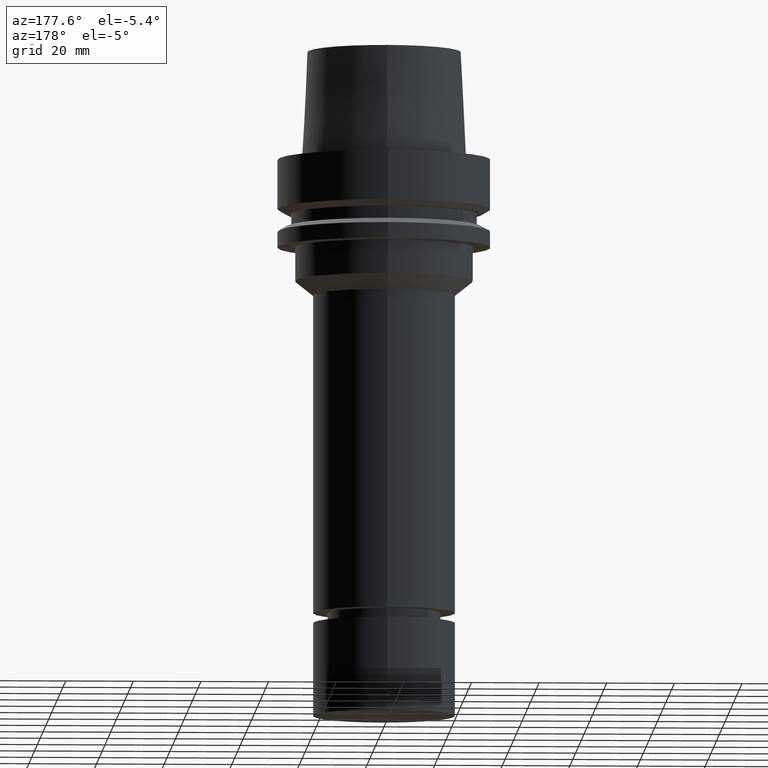
[diagram: clean part render]
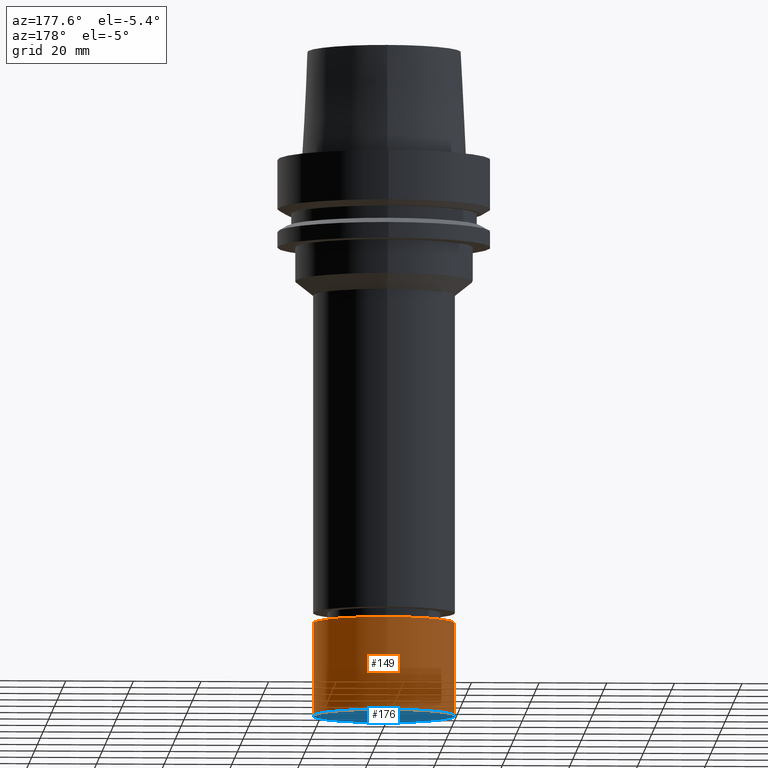
[diagram: same view with the hole feature highlighted: cylindrical wall and planar end face, labeled with their STEP entity ids]
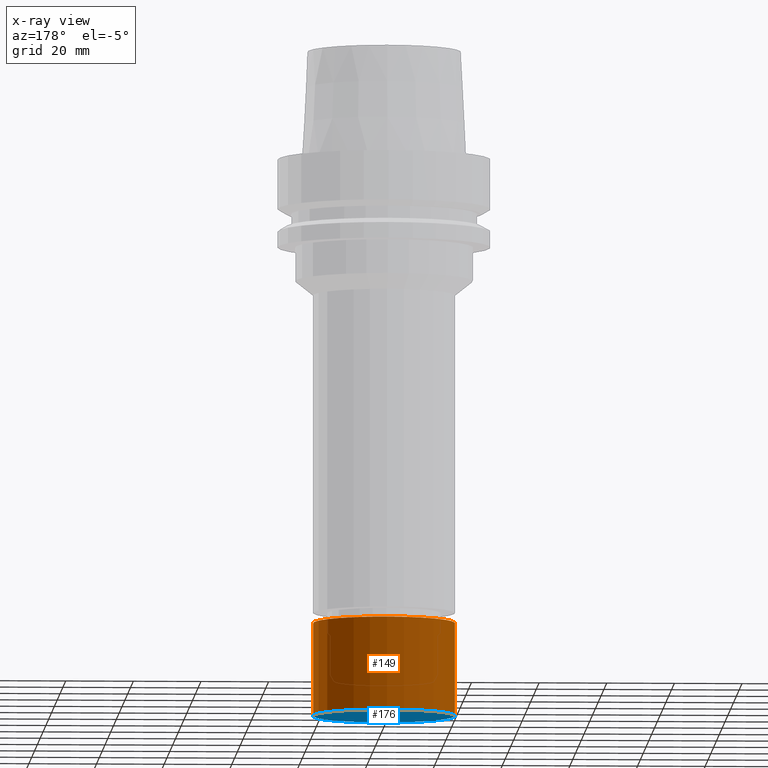
[diagram: x-ray of the same camera — body ghosted, the hole faces saturated]
A machine part, auxiliary view. The highlighted faces form one hole feature of diameter 42 mm: the cylindrical wall (entity #149, orange) and its adjacent planar end face (entity #176, blue) — they share a circular edge in the B-rep.
The next image is the same camera in x-ray (body ghosted, the hole faces saturated) — the bore reads through the body.
Wall:
#79=EDGE_CURVE('Unnamed[1]',#215,#215,#216,.T.);
#108=EDGE_CURVE('Unnamed[1]',#260,#260,#261,.T.);
#149=ADVANCED_FACE('Unnamed[1]',(#323,#324),#325,.T.);
#215=VERTEX_POINT('',#407);
#216=CIRCLE('',#408,21.0);
#260=VERTEX_POINT('',#463);
#261=CIRCLE('',#464,21.0);
#323=FACE_BOUND('',#541,.T.);
#324=FACE_BOUND('',#542,.T.);
#325=CYLINDRICAL_SURFACE('',#543,21.0);
#407=CARTESIAN_POINT('',(8.41944674413805E-015,21.0,-137.5));
#408=AXIS2_PLACEMENT_3D('',#630,#631,#632);
#463=CARTESIAN_POINT('',(1.01033360929657E-014,21.0,-165.0));
#464=AXIS2_PLACEMENT_3D('',#682,#683,#684);
#541=EDGE_LOOP('',(#750));
#542=EDGE_LOOP('',(#751));
#543=AXIS2_PLACEMENT_3D('',#752,#753,#754);
#630=CARTESIAN_POINT('',(8.41944674413805E-015,1.68388934882761E-014,-137.5));
#631=DIRECTION('',(6.12323399573677E-017,1.22464679914735E-016,-1.0));
#632=DIRECTION('',(-1.23259516440783E-032,1.0,1.22464679914735E-016));
#682=CARTESIAN_POINT('',(1.01033360929657E-014,2.02066721859313E-014,-165.0));
#683=DIRECTION('',(6.12323399573677E-017,1.22464679914735E-016,-1.0));
#684=DIRECTION('',(-1.23259516440783E-032,1.0,1.22464679914735E-016));
#750=ORIENTED_EDGE('',*,*,#108,.F.);
#751=ORIENTED_EDGE('',*,*,#79,.T.);
#752=CARTESIAN_POINT('',(9.26139141855186E-015,1.85227828371037E-014,-151.25));
#753=DIRECTION('',(6.12323399573677E-017,1.22464679914735E-016,-1.0));
#754=DIRECTION('',(-1.23259516440783E-032,1.0,1.22464679914735E-016));
End face:
#108=EDGE_CURVE('Unnamed[1]',#260,#260,#261,.T.);
#176=ADVANCED_FACE('Unnamed[1]',(#363),#364,.T.);
#260=VERTEX_POINT('',#463);
#261=CIRCLE('',#464,21.0);
#363=FACE_OUTER_BOUND('',#591,.T.);
#364=PLANE('',#592);
#463=CARTESIAN_POINT('',(1.01033360929657E-014,21.0,-165.0));
#464=AXIS2_PLACEMENT_3D('',#682,#683,#684);
#591=EDGE_LOOP('',(#792));
#592=AXIS2_PLACEMENT_3D('',#793,#794,#795);
#682=CARTESIAN_POINT('',(1.01033360929657E-014,2.02066721859313E-014,-165.0));
#683=DIRECTION('',(6.12323399573677E-017,1.22464679914735E-016,-1.0));
#684=DIRECTION('',(-1.23259516440783E-032,1.0,1.22464679914735E-016));
#792=ORIENTED_EDGE('',*,*,#108,.T.);
#793=CARTESIAN_POINT('',(1.01033360929657E-014,10.5,-165.0));
#794=DIRECTION('',(6.12323399573677E-017,1.22464679914735E-016,-1.0));
#795=DIRECTION('',(-1.23259516440783E-032,1.0,1.22464679914735E-016));